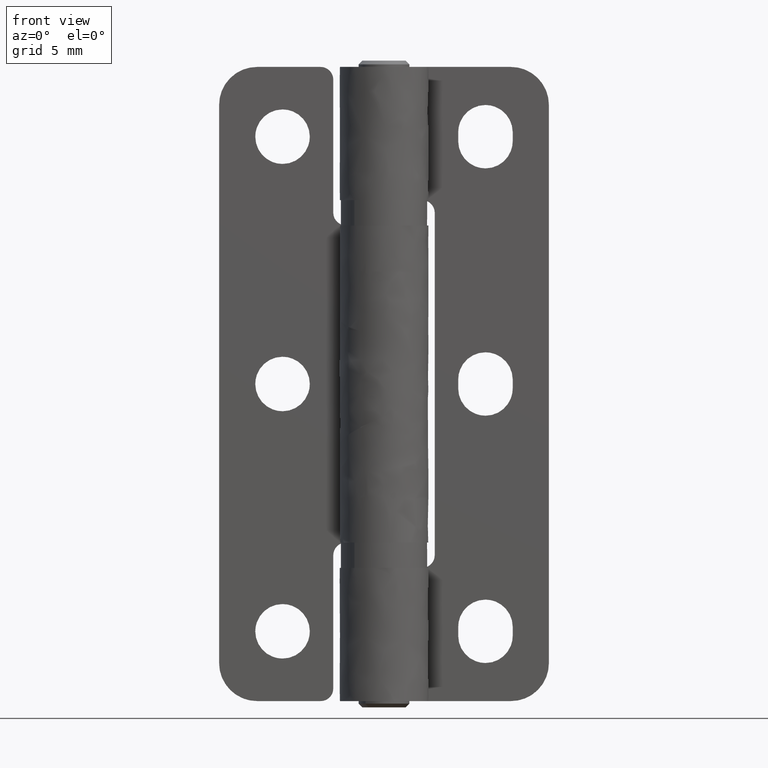
[diagram: clean part render]
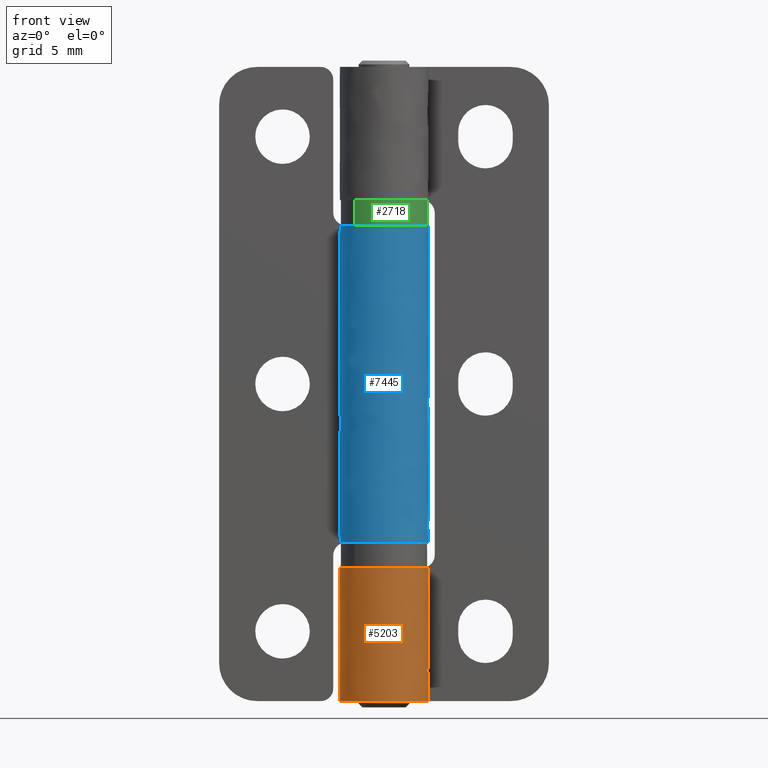
[diagram: same view with three faces highlighted in distinct colors, each labeled with its STEP entity id]
A machine part, front view with three faces highlighted in distinct colors.
Their STEP definitions:

[orange] entity #5203 — the highlighted face is a freeform B-spline surface patch.
#4252=CARTESIAN_POINT('',(3.162277660168295,1.500000000000200,1.0));
#4253=VERTEX_POINT('',#4252);
#4259=CARTESIAN_POINT('',(3.459029062228035,0.533964368344842,4.654752E-017));
#4260=VERTEX_POINT('',#4259);
#4261=CARTESIAN_POINT('',(3.459029062228035,0.533964368344842,4.654752E-017));
#4262=CARTESIAN_POINT('',(3.406150621910271,0.872546689781503,0.328573991909659));
#4263=CARTESIAN_POINT('',(3.306546732204679,1.196874368230893,0.664293993821992));
#4264=CARTESIAN_POINT('',(3.162277660168295,1.500000000000200,1.0));
#4265=B_SPLINE_CURVE_WITH_KNOTS('',3,(#4261,#4262,#4263,#4264),.UNSPECIFIED.,.F.,.U.,(4,4),(6.227636E-010,1.424268714151551),.UNSPECIFIED.);
#4266=EDGE_CURVE('',#4260,#4253,#4265,.T.);
#4281=CARTESIAN_POINT('',(3.162277660168295,1.500000000000200,9.499999999999840));
#4282=VERTEX_POINT('',#4281);
#4283=CARTESIAN_POINT('',(3.459029062228020,0.533964368344917,10.500000000000000));
#4284=VERTEX_POINT('',#4283);
#4285=CARTESIAN_POINT('',(3.162277660168295,1.500000000000200,9.499999999999840));
#4286=CARTESIAN_POINT('',(3.306532549001477,1.196868599638676,9.835705139630854));
#4287=CARTESIAN_POINT('',(3.406166115121144,0.872552832707083,10.171427097856030));
#4288=CARTESIAN_POINT('',(3.459029062228020,0.533964368344917,10.500000000000000));
#4289=B_SPLINE_CURVE_WITH_KNOTS('',3,(#4285,#4286,#4287,#4288),.UNSPECIFIED.,.F.,.U.,(4,4),(6.226037E-010,1.424268714803280),.UNSPECIFIED.);
#4290=EDGE_CURVE('',#4282,#4284,#4289,.T.);
#4800=CARTESIAN_POINT('',(0.0,3.499999999999950,10.500000000000000));
#4801=VERTEX_POINT('',#4800);
#4807=CARTESIAN_POINT('',(-2.278280203386017,-2.656960540704241,10.500000000000000));
#4808=VERTEX_POINT('',#4807);
#4809=CARTESIAN_POINT('',(0.0,3.499999999999950,10.500000000000000));
#4810=CARTESIAN_POINT('',(-0.299345154443780,3.500088146060874,10.500000000000011));
#4811=CARTESIAN_POINT('',(-0.886914798442221,3.424159702266513,10.499999999999989));
#4812=CARTESIAN_POINT('',(-1.633850180893883,3.125735594468447,10.499999999999980));
#4813=CARTESIAN_POINT('',(-2.288905693922168,2.683400025238806,10.500000000000050));
#4814=CARTESIAN_POINT('',(-2.806212528382872,2.142433490213812,10.500000000000000));
#4815=CARTESIAN_POINT('',(-3.175579810492009,1.519057789926920,10.500000000000140));
#4816=CARTESIAN_POINT('',(-3.373693284651230,0.975650058593988,10.500000000000080));
#4817=CARTESIAN_POINT('',(-3.485638403524773,0.442992713745497,10.499999999999600));
#4818=CARTESIAN_POINT('',(-3.513817287161872,-0.068313508428273,10.500000000000981));
#4819=CARTESIAN_POINT('',(-3.458507448096023,-0.609961204144397,10.499999999998931));
#4820=CARTESIAN_POINT('',(-3.310655964525744,-1.203373738854858,10.500000000000560));
#4821=CARTESIAN_POINT('',(-2.964176823069365,-1.941124039551355,10.500000000000110));
#4822=CARTESIAN_POINT('',(-2.547729229228002,-2.426143967352813,10.499999999999609));
#4823=CARTESIAN_POINT('',(-2.278280203386017,-2.656960540704241,10.500000000000000));
#4824=B_SPLINE_CURVE_WITH_KNOTS('',3,(#4809,#4810,#4811,#4812,#4813,#4814,#4815,#4816,#4817,#4818,#4819,#4820,#4821,#4822,#4823),.UNSPECIFIED.,.F.,.U.,(4,1,1,1,1,1,1,1,1,1,1,1,4),(0.000000120065598,0.898018097877403,1.762815426569206,2.394772713707343,3.259555512649342,3.991291833423255,4.556687977594449,4.989094020129333,5.621056613044971,6.086709011432992,6.618882834492977,7.450404483783613,8.514742086358192),.UNSPECIFIED.);
#4825=EDGE_CURVE('',#4801,#4808,#4824,.T.);
#4827=CARTESIAN_POINT('',(-2.278280203386017,-2.656960540704241,10.500000000000000));
#4828=CARTESIAN_POINT('',(-1.992259281969902,-2.902544036853793,10.499999999999989));
#4829=CARTESIAN_POINT('',(-1.483725085342581,-3.211923613716754,10.500000000000060));
#4830=CARTESIAN_POINT('',(-0.663667588284657,-3.461494586744595,10.499999999999940));
#4831=CARTESIAN_POINT('',(0.103122964996124,-3.531623303235545,10.500000000000041));
#4832=CARTESIAN_POINT('',(0.821511338695899,-3.425616488294670,10.499999999999980));
#4833=CARTESIAN_POINT('',(1.460415308926494,-3.198647578566403,10.500000000000020));
#4834=CARTESIAN_POINT('',(2.034678292520483,-2.879313701707082,10.500000000000000));
#4835=CARTESIAN_POINT('',(2.598437635041861,-2.388224062725472,10.500000000000000));
#4836=CARTESIAN_POINT('',(3.045763250209198,-1.775755968957842,10.500000000000000));
#4837=CARTESIAN_POINT('',(3.319413093982495,-1.165798765558455,10.500000000000000));
#4838=CARTESIAN_POINT('',(3.511674783666175,-0.400107080628885,10.499999999999989));
#4839=CARTESIAN_POINT('',(3.516789776670157,0.161424765880805,10.500000000000011));
#4840=CARTESIAN_POINT('',(3.459029062228020,0.533964368344917,10.500000000000000));
#4841=B_SPLINE_CURVE_WITH_KNOTS('',3,(#4827,#4828,#4829,#4830,#4831,#4832,#4833,#4834,#4835,#4836,#4837,#4838,#4839,#4840),.UNSPECIFIED.,.F.,.U.,(4,1,1,1,1,1,1,1,1,1,1,4),(0.000000120053611,1.130847539690037,1.762815226621776,2.561079774528611,3.425863752689512,3.924779309528037,4.589970088882667,5.388229118305028,6.153229648755618,6.851710092963957,7.383882614228989,8.514741120610587),.UNSPECIFIED.);
#4842=EDGE_CURVE('',#4808,#4284,#4841,.T.);
#5025=CARTESIAN_POINT('',(-2.278280936507244,-2.656959912070123,0.0));
#5026=VERTEX_POINT('',#5025);
#5027=CARTESIAN_POINT('',(3.459029062228035,0.533964368344842,4.654752E-017));
#5028=CARTESIAN_POINT('',(3.504785591466500,0.238136280448454,4.582178E-017));
#5029=CARTESIAN_POINT('',(3.519380176326453,-0.354135498689324,4.389022E-017));
#5030=CARTESIAN_POINT('',(3.338423182030863,-1.137867411088092,4.008976E-017));
#5031=CARTESIAN_POINT('',(3.024897600044205,-1.802363395539525,3.587262E-017));
#5032=CARTESIAN_POINT('',(2.676579596611909,-2.279232727796244,3.207990E-017));
#5033=CARTESIAN_POINT('',(2.241556763418758,-2.708209757820391,2.791191E-017));
#5034=CARTESIAN_POINT('',(1.687183804073086,-3.101441794103536,2.312431E-017));
#5035=CARTESIAN_POINT('',(1.066558981014232,-3.355667898929004,1.839964E-017));
#5036=CARTESIAN_POINT('',(0.468373215592855,-3.479016572693467,1.426127E-017));
#5037=CARTESIAN_POINT('',(0.013625004316746,-3.511101451262075,1.132585E-017));
#5038=CARTESIAN_POINT('',(-0.562703838151212,-3.472261169086349,7.877075E-018));
#5039=CARTESIAN_POINT('',(-1.126259657509820,-3.335282496761037,4.842760E-018));
#5040=CARTESIAN_POINT('',(-1.744525483703783,-3.056379520534112,1.953055E-018));
#5041=CARTESIAN_POINT('',(-2.093147609843768,-2.815760382279639,6.082368E-019));
#5042=CARTESIAN_POINT('',(-2.278280936507244,-2.656959912070123,0.0));
#5043=B_SPLINE_CURVE_WITH_KNOTS('',3,(#5027,#5028,#5029,#5030,#5031,#5032,#5033,#5034,#5035,#5036,#5037,#5038,#5039,#5040,#5041,#5042),.UNSPECIFIED.,.F.,.U.,(4,1,1,1,1,1,1,1,1,1,1,1,1,4),(0.000000120066019,0.898018097877957,1.762815426569886,2.394772713708085,3.093248404482217,3.525657268504424,4.224139939497325,5.122127540591375,5.521263709828993,6.053443633894815,6.485840241382524,7.250849471326044,7.783019161032411,8.514742086358195),.UNSPECIFIED.);
#5044=EDGE_CURVE('',#4260,#5026,#5043,.T.);
#5046=CARTESIAN_POINT('',(0.0,3.500000000000000,0.0));
#5047=VERTEX_POINT('',#5046);
#5048=CARTESIAN_POINT('',(-2.278280936507244,-2.656959912070123,0.0));
#5049=CARTESIAN_POINT('',(-2.471881010957542,-2.491002271644914,-4.573907E-018));
#5050=CARTESIAN_POINT('',(-2.784433338293754,-2.157219097886511,-1.239522E-017));
#5051=CARTESIAN_POINT('',(-3.149658441987181,-1.571916651896229,-2.283061E-017));
#5052=CARTESIAN_POINT('',(-3.417412331990100,-0.886992256803109,-3.217893E-017));
#5053=CARTESIAN_POINT('',(-3.536575312928797,-0.068415175838498,-3.974915E-017));
#5054=CARTESIAN_POINT('',(-3.451517559198719,0.720209749921024,-4.345763E-017));
#5055=CARTESIAN_POINT('',(-3.216090317477559,1.439318688624006,-4.400768E-017));
#5056=CARTESIAN_POINT('',(-2.869250520327674,2.050827064154000,-4.184527E-017));
#5057=CARTESIAN_POINT('',(-2.416080558320287,2.557382365753793,-3.707913E-017));
#5058=CARTESIAN_POINT('',(-1.987398160463936,2.893651867170129,-3.162202E-017));
#5059=CARTESIAN_POINT('',(-1.566347860019245,3.141562787667210,-2.571537E-017));
#5060=CARTESIAN_POINT('',(-0.931180753148627,3.409573773429759,-1.610168E-017));
#5061=CARTESIAN_POINT('',(-0.376984014041863,3.500211716545365,-6.763062E-018));
#5062=CARTESIAN_POINT('',(0.0,3.500000000000000,0.0));
#5063=B_SPLINE_CURVE_WITH_KNOTS('',3,(#5048,#5049,#5050,#5051,#5052,#5053,#5054,#5055,#5056,#5057,#5058,#5059,#5060,#5061,#5062),.UNSPECIFIED.,.F.,.U.,(4,1,1,1,1,1,1,1,1,1,1,1,4),(0.000000120054153,0.764983945408528,1.363676884069096,2.062163878442490,2.960215634675609,3.824983797169972,4.423667613499070,5.221917390130221,5.920401639564883,6.452577948639424,6.851710092963841,7.383882614228895,8.514741120610545),.UNSPECIFIED.);
#5064=EDGE_CURVE('',#5026,#5047,#5063,.T.);
#5142=CARTESIAN_POINT('',(3.162277660168295,1.500000000000200,9.499999999999840));
#5143=CARTESIAN_POINT('',(3.162277660168295,1.500000000000200,1.0));
#5144=QUASI_UNIFORM_CURVE('',1,(#5142,#5143),.UNSPECIFIED.,.F.,.U.);
#5145=EDGE_CURVE('',#4282,#4253,#5144,.T.);
#5167=CARTESIAN_POINT('',(0.030542874244306,3.499866730724598,10.762499999999999));
#5168=CARTESIAN_POINT('',(0.030542874244306,3.499866730724598,-0.269062500000000));
#5169=CARTESIAN_POINT('',(-4.115880821359820,3.536052022120600,10.762500000000001));
#5170=CARTESIAN_POINT('',(-4.115880821359820,3.536052022120600,-0.269062500000000));
#5171=CARTESIAN_POINT('',(-3.455301895910807,-0.557574038236331,10.762499999999999));
#5172=CARTESIAN_POINT('',(-3.455301895910807,-0.557574038236331,-0.269062500000000));
#5173=CARTESIAN_POINT('',(-2.794722970461796,-4.651200098593262,10.762500000000001));
#5174=CARTESIAN_POINT('',(-2.794722970461796,-4.651200098593262,-0.269062500000000));
#5175=CARTESIAN_POINT('',(1.129857326068901,-3.312615646694983,10.762499999999999));
#5176=CARTESIAN_POINT('',(1.129857326068901,-3.312615646694983,-0.269062500000000));
#5177=CARTESIAN_POINT('',(5.054437622599598,-1.974031194796705,10.762500000000001));
#5178=CARTESIAN_POINT('',(5.054437622599598,-1.974031194796705,-0.269062500000000));
#5179=CARTESIAN_POINT('',(3.075859894316878,1.670055660908628,10.762499999999999));
#5180=CARTESIAN_POINT('',(3.075859894316878,1.670055660908628,-0.269062500000000));
#5188=(BOUNDED_SURFACE()B_SPLINE_SURFACE(1,2,((#5167,#5169,#5171,#5173,#5175,#5177,#5179),(#5168,#5170,#5172,#5174,#5176,#5178,#5180)),.UNSPECIFIED.,.F.,.F.,.U.)B_SPLINE_SURFACE_WITH_KNOTS((2,2),(3,2,2,3),(0.0,11.031562500000000),(0.0,6.503534214651215,13.007068429302430,19.510602643953650),.UNSPECIFIED.)GEOMETRIC_REPRESENTATION_ITEM()RATIONAL_B_SPLINE_SURFACE(((1.0,0.645013219999878,1.0,0.645013219999878,1.0,0.645013219999878,1.0),(1.0,0.645013219999878,1.0,0.645013219999878,1.0,0.645013219999878,1.0)))REPRESENTATION_ITEM('')SURFACE());
#5189=ORIENTED_EDGE('',*,*,#5145,.F.);
#5190=ORIENTED_EDGE('',*,*,#4290,.T.);
#5191=ORIENTED_EDGE('',*,*,#4842,.F.);
#5192=ORIENTED_EDGE('',*,*,#4825,.F.);
#5193=CARTESIAN_POINT('',(0.0,3.499999999999950,10.500000000000000));
#5194=CARTESIAN_POINT('',(0.0,3.500000000000000,0.0));
#5195=QUASI_UNIFORM_CURVE('',1,(#5193,#5194),.UNSPECIFIED.,.F.,.U.);
#5196=EDGE_CURVE('',#4801,#5047,#5195,.T.);
#5197=ORIENTED_EDGE('',*,*,#5196,.T.);
#5198=ORIENTED_EDGE('',*,*,#5064,.F.);
#5199=ORIENTED_EDGE('',*,*,#5044,.F.);
#5200=ORIENTED_EDGE('',*,*,#4266,.T.);
#5201=EDGE_LOOP('',(#5189,#5190,#5191,#5192,#5197,#5198,#5199,#5200));
#5202=FACE_OUTER_BOUND('',#5201,.T.);
#5203=ADVANCED_FACE('',(#5202),#5188,.T.);

[blue] entity #7445 — the highlighted face is a freeform B-spline surface patch.
#6231=CARTESIAN_POINT('',(0.0,3.500000000000000,37.500000000000000));
#6232=VERTEX_POINT('',#6231);
#6238=CARTESIAN_POINT('',(0.0,3.500000000000000,12.500000000000000));
#6239=VERTEX_POINT('',#6238);
#6240=CARTESIAN_POINT('',(0.0,3.500000000000000,37.500000000000000));
#6241=CARTESIAN_POINT('',(0.0,3.500000000000000,12.500000000000000));
#6242=QUASI_UNIFORM_CURVE('',1,(#6240,#6241),.UNSPECIFIED.,.F.,.U.);
#6243=EDGE_CURVE('',#6232,#6239,#6242,.T.);
#6334=CARTESIAN_POINT('',(-3.477067730142785,0.399999999999680,36.500000000000000));
#6335=VERTEX_POINT('',#6334);
#6341=CARTESIAN_POINT('',(-3.446411345844260,-0.610121983898293,37.500000000000000));
#6342=VERTEX_POINT('',#6341);
#6343=CARTESIAN_POINT('',(-3.446411345844260,-0.610121983898293,37.500000000000000));
#6344=CARTESIAN_POINT('',(-3.505575107132328,-0.272576449624877,37.171427662811404));
#6345=CARTESIAN_POINT('',(-3.515844997381493,0.066542484710620,36.835704363623123));
#6346=CARTESIAN_POINT('',(-3.477067730142785,0.399999999999680,36.500000000000000));
#6347=B_SPLINE_CURVE_WITH_KNOTS('',3,(#6343,#6344,#6345,#6346),.UNSPECIFIED.,.F.,.U.,(4,4),(6.221796E-010,1.424268714151569),.UNSPECIFIED.);
#6348=EDGE_CURVE('',#6342,#6335,#6347,.T.);
#6363=CARTESIAN_POINT('',(-3.477067730142785,0.399999999999680,13.500000000000000));
#6364=VERTEX_POINT('',#6363);
#6365=CARTESIAN_POINT('',(-3.446411345844260,-0.610121983898311,12.500000000000000));
#6366=VERTEX_POINT('',#6365);
#6367=CARTESIAN_POINT('',(-3.477067730142785,0.399999999999680,13.500000000000000));
#6368=CARTESIAN_POINT('',(-3.515845054268378,0.066542499486375,13.164295644554439));
#6369=CARTESIAN_POINT('',(-3.505575041271189,-0.272576491522652,12.828572303092439));
#6370=CARTESIAN_POINT('',(-3.446411345844260,-0.610121983898311,12.500000000000000));
#6371=B_SPLINE_CURVE_WITH_KNOTS('',3,(#6367,#6368,#6369,#6370),.UNSPECIFIED.,.F.,.U.,(4,4),(6.228391E-010,1.424268714803255),.UNSPECIFIED.);
#6372=EDGE_CURVE('',#6364,#6366,#6371,.T.);
#6551=CARTESIAN_POINT('',(-3.477067730142785,0.399999999999680,30.400000000026651));
#6552=VERTEX_POINT('',#6551);
#6553=CARTESIAN_POINT('',(-3.384261697123185,0.892621288892966,29.900000000026552));
#6554=VERTEX_POINT('',#6553);
#6555=CARTESIAN_POINT('',(-3.477067730142785,0.399999999999681,30.400000000026651));
#6556=CARTESIAN_POINT('',(-3.477067730142785,0.399999999999681,30.366917996199462));
#6557=CARTESIAN_POINT('',(-3.476700456128358,0.403230086239327,30.334389522657009));
#6558=CARTESIAN_POINT('',(-3.475582546566523,0.412717946090414,30.286393210789541));
#6559=CARTESIAN_POINT('',(-3.475113982979110,0.416660040629999,30.270528163389169));
#6560=CARTESIAN_POINT('',(-3.473964582185958,0.426137144440934,30.239071669082630));
#6561=CARTESIAN_POINT('',(-3.473280325843009,0.431698241919949,30.223439603833441));
#6562=CARTESIAN_POINT('',(-3.470918306367614,0.450427004498665,30.177973136574369));
#6563=CARTESIAN_POINT('',(-3.468926967902294,0.465700393481775,30.149223935997469));
#6564=CARTESIAN_POINT('',(-3.463896810030025,0.501747002574711,30.094823637053938));
#6565=CARTESIAN_POINT('',(-3.460825327421759,0.522707615820244,30.069078068149359));
#6566=CARTESIAN_POINT('',(-3.453613234642331,0.568410788131029,30.022961638914751));
#6567=CARTESIAN_POINT('',(-3.449453489417867,0.593314663150610,30.002280225678060));
#6568=CARTESIAN_POINT('',(-3.439735555029285,0.647279674201189,29.965782723053060));
#6569=CARTESIAN_POINT('',(-3.434243367067897,0.675930510144045,29.950307909031810));
#6570=CARTESIAN_POINT('',(-3.422085534975843,0.735010306119943,29.925481919872912));
#6571=CARTESIAN_POINT('',(-3.415335537789229,0.765852879097707,29.915947429131968));
#6572=CARTESIAN_POINT('',(-3.400588992286666,0.828879951287906,29.903185520566790));
#6573=CARTESIAN_POINT('',(-3.392698465302884,0.860634340168649,29.900000000026640));
#6574=CARTESIAN_POINT('',(-3.384261697123185,0.892621288892977,29.900000000026651));
#6575=B_SPLINE_CURVE_WITH_KNOTS('',3,(#6555,#6556,#6557,#6558,#6559,#6560,#6561,#6562,#6563,#6564,#6565,#6566,#6567,#6568,#6569,#6570,#6571,#6572,#6573,#6574),.UNSPECIFIED.,.F.,.U.,(4,2,2,2,2,2,2,2,2,4),(0.0,0.125000000000000,0.187500000000000,0.250000000000000,0.375000000000000,0.500000000000000,0.625000000000000,0.750000000000000,0.875000000000000,1.0),.UNSPECIFIED.);
#6576=EDGE_CURVE('',#6552,#6554,#6575,.T.);
#6739=CARTESIAN_POINT('',(-3.384261697123185,0.892621288892966,20.100000000026650));
#6740=VERTEX_POINT('',#6739);
#6741=CARTESIAN_POINT('',(-3.477067730142785,0.399999999999680,19.600000000026601));
#6742=VERTEX_POINT('',#6741);
#6743=CARTESIAN_POINT('',(-3.384261697123185,0.892621288892966,20.100000000026650));
#6744=CARTESIAN_POINT('',(-3.392697811017697,0.860636820808886,20.100000000026650));
#6745=CARTESIAN_POINT('',(-3.400541742687787,0.829060262108723,20.096815039836400));
#6746=CARTESIAN_POINT('',(-3.411489861638080,0.782299935723545,20.087400348176381));
#6747=CARTESIAN_POINT('',(-3.415002637618249,0.766814787860625,20.083483748481800));
#6748=CARTESIAN_POINT('',(-3.421763807791203,0.736057319447051,20.074050496106899));
#6749=CARTESIAN_POINT('',(-3.425019194056360,0.720745399116776,20.068507806638991));
#6750=CARTESIAN_POINT('',(-3.434203229474093,0.676143341814127,20.049812877042449));
#6751=CARTESIAN_POINT('',(-3.439627447163876,0.647847867451299,20.034533140437478));
#6752=CARTESIAN_POINT('',(-3.449305697218984,0.594166678447165,19.998362635988169));
#6753=CARTESIAN_POINT('',(-3.453567761962298,0.568687772884407,19.977283782261772));
#6754=CARTESIAN_POINT('',(-3.460789142797932,0.522947969290890,19.931198143577589));
#6755=CARTESIAN_POINT('',(-3.463806063596744,0.502379167793210,19.906029193247392));
#6756=CARTESIAN_POINT('',(-3.468887308507877,0.466002269645929,19.851330287796880));
#6757=CARTESIAN_POINT('',(-3.470902576643892,0.450546764739543,19.822240917449211));
#6758=CARTESIAN_POINT('',(-3.474040286593670,0.425677308409377,19.762019441527482));
#6759=CARTESIAN_POINT('',(-3.475185360738800,0.416087259171049,19.730469915806989));
#6760=CARTESIAN_POINT('',(-3.476700612292774,0.403230394713489,19.665790379659182));
#6761=CARTESIAN_POINT('',(-3.477067730142786,0.399999999999678,19.633081454181259));
#6762=CARTESIAN_POINT('',(-3.477067730142785,0.399999999999681,19.600000000026601));
#6763=B_SPLINE_CURVE_WITH_KNOTS('',3,(#6743,#6744,#6745,#6746,#6747,#6748,#6749,#6750,#6751,#6752,#6753,#6754,#6755,#6756,#6757,#6758,#6759,#6760,#6761,#6762),.UNSPECIFIED.,.F.,.U.,(4,2,2,2,2,2,2,2,2,4),(0.0,0.125000000000004,0.187500000000006,0.250000000000008,0.375000000000007,0.500000000000006,0.625000000000004,0.750000000000003,0.875000000000001,1.0),.UNSPECIFIED.);
#6764=EDGE_CURVE('',#6740,#6742,#6763,.T.);
#6816=CARTESIAN_POINT('',(-3.344128900029545,1.032861026463500,20.100000000026650));
#6817=VERTEX_POINT('',#6816);
#6823=CARTESIAN_POINT('',(-3.162277660168410,1.499999999999950,20.600000000026601));
#6824=VERTEX_POINT('',#6823);
#6825=CARTESIAN_POINT('',(-3.162277660168410,1.499999999999950,20.600000000026601));
#6826=CARTESIAN_POINT('',(-3.162277660168410,1.499999999999950,20.566917996199411));
#6827=CARTESIAN_POINT('',(-3.163674773212406,1.497064625669559,20.534389522656959));
#6828=CARTESIAN_POINT('',(-3.167745386999245,1.488421749427203,20.486393210789512));
#6829=CARTESIAN_POINT('',(-3.169433212512183,1.484828574475666,20.470528163389119));
#6830=CARTESIAN_POINT('',(-3.173471412397918,1.476178166363364,20.439071669082590));
#6831=CARTESIAN_POINT('',(-3.175832686483188,1.471096985732033,20.423439603833391));
#6832=CARTESIAN_POINT('',(-3.183736173757579,1.453954040458960,20.377973136574340));
#6833=CARTESIAN_POINT('',(-3.190126257351473,1.439939452645691,20.349223935997440));
#6834=CARTESIAN_POINT('',(-3.204927051944065,1.406688933931742,20.294823637053881));
#6835=CARTESIAN_POINT('',(-3.213409179660663,1.387276700097348,20.269078068149309));
#6836=CARTESIAN_POINT('',(-3.231466894831206,1.344677249815125,20.222961638914700));
#6837=CARTESIAN_POINT('',(-3.241111583715790,1.321343016430614,20.202280225678020));
#6838=CARTESIAN_POINT('',(-3.261413510343508,1.270406855977824,20.165782723053020));
#6839=CARTESIAN_POINT('',(-3.271909699721388,1.243188029085919,20.150307909031788));
#6840=CARTESIAN_POINT('',(-3.292846939416730,1.186620660686178,20.125481919872851));
#6841=CARTESIAN_POINT('',(-3.303435217133759,1.156876499160009,20.115947429131911));
#6842=CARTESIAN_POINT('',(-3.324263846487753,1.095589953879975,20.103185520566740));
#6843=CARTESIAN_POINT('',(-3.334366631136176,1.064468652949282,20.100000000026601));
#6844=CARTESIAN_POINT('',(-3.344128900029545,1.032861026463506,20.100000000026601));
#6845=B_SPLINE_CURVE_WITH_KNOTS('',3,(#6825,#6826,#6827,#6828,#6829,#6830,#6831,#6832,#6833,#6834,#6835,#6836,#6837,#6838,#6839,#6840,#6841,#6842,#6843,#6844),.UNSPECIFIED.,.F.,.U.,(4,2,2,2,2,2,2,2,2,4),(0.0,0.125000000000000,0.187500000000000,0.250000000000000,0.375000000000000,0.500000000000000,0.625000000000000,0.750000000000000,0.875000000000000,1.0),.UNSPECIFIED.);
#6846=EDGE_CURVE('',#6824,#6817,#6845,.T.);
#6870=CARTESIAN_POINT('',(-3.344128900029545,1.032861026463500,29.900000000026552));
#6871=VERTEX_POINT('',#6870);
#6899=CARTESIAN_POINT('',(-3.162277660168410,1.499999999999950,29.400000000026651));
#6900=VERTEX_POINT('',#6899);
#6906=CARTESIAN_POINT('',(-3.344128900029545,1.032861026463500,29.900000000026601));
#6907=CARTESIAN_POINT('',(-3.334367388216116,1.064466201726085,29.900000000026601));
#6908=CARTESIAN_POINT('',(-3.324319138368889,1.095411944541500,29.896815039836358));
#6909=CARTESIAN_POINT('',(-3.308872589432457,1.140884942662935,29.887400348176332));
#6910=CARTESIAN_POINT('',(-3.303661585593550,1.155884103919958,29.883483748481758));
#6911=CARTESIAN_POINT('',(-3.293127811506460,1.185561955742513,29.874050496106861));
#6912=CARTESIAN_POINT('',(-3.287790025657527,1.200277949972154,29.868507806638949));
#6913=CARTESIAN_POINT('',(-3.271988231136747,1.242986184682871,29.849812877042410));
#6914=CARTESIAN_POINT('',(-3.261622355506865,1.269867491001376,29.834533140437451));
#6915=CARTESIAN_POINT('',(-3.241436900366287,1.320541803801788,29.798362635988148));
#6916=CARTESIAN_POINT('',(-3.231574837203881,1.344418142187999,29.777283782261762));
#6917=CARTESIAN_POINT('',(-3.213505625222390,1.387053591667448,29.731198143577569));
#6918=CARTESIAN_POINT('',(-3.205184472708502,1.406104466371719,29.706029193247389));
#6919=CARTESIAN_POINT('',(-3.190252301017497,1.439662297309593,29.651330287796881));
#6920=CARTESIAN_POINT('',(-3.183786181116274,1.453844089544516,29.622240917449211));
#6921=CARTESIAN_POINT('',(-3.173292392678289,1.476608436363743,29.562019441527500));
#6922=CARTESIAN_POINT('',(-3.169190770609632,1.485352402031409,29.530469915807011));
#6923=CARTESIAN_POINT('',(-3.163675068924302,1.497064446510090,29.465790379659222));
#6924=CARTESIAN_POINT('',(-3.162277660168410,1.499999999999950,29.433081454181259));
#6925=CARTESIAN_POINT('',(-3.162277660168410,1.499999999999950,29.400000000026601));
#6926=B_SPLINE_CURVE_WITH_KNOTS('',3,(#6906,#6907,#6908,#6909,#6910,#6911,#6912,#6913,#6914,#6915,#6916,#6917,#6918,#6919,#6920,#6921,#6922,#6923,#6924,#6925),.UNSPECIFIED.,.F.,.U.,(4,2,2,2,2,2,2,2,2,4),(0.0,0.125000000000001,0.187500000000001,0.250000000000001,0.375000000000001,0.500000000000001,0.625000000000000,0.750000000000000,0.875000000000000,1.0),.UNSPECIFIED.);
#6927=EDGE_CURVE('',#6871,#6900,#6926,.T.);
#6937=CARTESIAN_POINT('',(-3.384261697123185,0.892621288892966,29.900000000026552));
#6938=CARTESIAN_POINT('',(-3.371860483014523,0.939639122450413,29.900000000026541));
#6939=CARTESIAN_POINT('',(-3.358478497155688,0.986401045966525,29.900000000026569));
#6940=CARTESIAN_POINT('',(-3.344128900029545,1.032861026463500,29.900000000026552));
#6941=B_SPLINE_CURVE_WITH_KNOTS('',3,(#6937,#6938,#6939,#6940),.UNSPECIFIED.,.F.,.U.,(4,4),(1.791250E-011,0.145880425523876),.UNSPECIFIED.);
#6942=EDGE_CURVE('',#6554,#6871,#6941,.T.);
#6956=CARTESIAN_POINT('',(-3.384261697123185,0.892621288892966,20.100000000026650));
#6957=CARTESIAN_POINT('',(-3.371860483014523,0.939639122450413,20.100000000026629));
#6958=CARTESIAN_POINT('',(-3.358478497155688,0.986401045966524,20.100000000026689));
#6959=CARTESIAN_POINT('',(-3.344128900029545,1.032861026463500,20.100000000026650));
#6960=B_SPLINE_CURVE_WITH_KNOTS('',3,(#6956,#6957,#6958,#6959),.UNSPECIFIED.,.F.,.U.,(4,4),(1.791250E-011,0.145880425523876),.UNSPECIFIED.);
#6961=EDGE_CURVE('',#6740,#6817,#6960,.T.);
#6971=CARTESIAN_POINT('',(-3.162277660168410,1.499999999999950,20.600000000026601));
#6972=CARTESIAN_POINT('',(-3.162277660168410,1.499999999999950,29.400000000026651));
#6973=QUASI_UNIFORM_CURVE('',1,(#6971,#6972),.UNSPECIFIED.,.F.,.U.);
#6974=EDGE_CURVE('',#6824,#6900,#6973,.T.);
#7163=CARTESIAN_POINT('',(2.681923863080510,-2.248840677469019,37.500000000000000));
#7164=VERTEX_POINT('',#7163);
#7165=CARTESIAN_POINT('',(-3.446411345844260,-0.610121983898293,37.500000000000000));
#7166=CARTESIAN_POINT('',(-3.415779728547288,-0.783185713847696,37.499999999999993));
#7167=CARTESIAN_POINT('',(-3.318107131982115,-1.164869181584181,37.500000000000050));
#7168=CARTESIAN_POINT('',(-3.077363966732339,-1.705547611372312,37.499999999999908));
#7169=CARTESIAN_POINT('',(-2.698729032063657,-2.263632353227738,37.500000000000000));
#7170=CARTESIAN_POINT('',(-2.203126510105410,-2.753653837073267,37.500000000000007));
#7171=CARTESIAN_POINT('',(-1.642070339800915,-3.110861448062323,37.499999999999829));
#7172=CARTESIAN_POINT('',(-1.096598853240221,-3.337751270416489,37.500000000000512));
#7173=CARTESIAN_POINT('',(-0.583273298195260,-3.465314870504129,37.499999999999879));
#7174=CARTESIAN_POINT('',(0.046703025843772,-3.521243482513382,37.500000000000171));
#7175=CARTESIAN_POINT('',(0.657540157724169,-3.458710874932347,37.499999999999922));
#7176=CARTESIAN_POINT('',(1.243849565477590,-3.284881555746136,37.500000000000007));
#7177=CARTESIAN_POINT('',(1.676492963010365,-3.084175712186621,37.499999999999972));
#7178=CARTESIAN_POINT('',(2.183060659207448,-2.761443381486636,37.500000000000327));
#7179=CARTESIAN_POINT('',(2.495984467669705,-2.470713991526294,37.499999999999488));
#7180=CARTESIAN_POINT('',(2.681923863080510,-2.248840677469019,37.500000000000000));
#7181=B_SPLINE_CURVE_WITH_KNOTS('',3,(#7165,#7166,#7167,#7168,#7169,#7170,#7171,#7172,#7173,#7174,#7175,#7176,#7177,#7178,#7179,#7180),.UNSPECIFIED.,.F.,.U.,(4,1,1,1,1,1,1,1,1,1,1,1,1,4),(0.000000101714612,0.527263765124492,1.178596727410290,1.767906611445559,2.543317007825671,3.256677705860938,3.752929895751510,4.311199470252009,4.838466796314609,5.644896301090251,6.141158528881205,6.668438653259621,7.071652938801973,7.940079790455040),.UNSPECIFIED.);
#7182=EDGE_CURVE('',#6342,#7164,#7181,.T.);
#7184=CARTESIAN_POINT('',(2.681923863080510,-2.248840677469019,37.500000000000000));
#7185=CARTESIAN_POINT('',(2.861336170030822,-2.034988139505543,37.500000000000107));
#7186=CARTESIAN_POINT('',(3.100224551389717,-1.668679179974526,37.499999999999787));
#7187=CARTESIAN_POINT('',(3.333798510316240,-1.103731807487016,37.500000000000227));
#7188=CARTESIAN_POINT('',(3.480204707063945,-0.531166743116435,37.499999999999758));
#7189=CARTESIAN_POINT('',(3.526974220383575,0.195497276501392,37.500000000000377));
#7190=CARTESIAN_POINT('',(3.392456070140002,0.975779146170575,37.499999999999659));
#7191=CARTESIAN_POINT('',(3.075321292836544,1.733068976759686,37.500000000001180));
#7192=CARTESIAN_POINT('',(2.650030114919721,2.325493907941566,37.499999999997307));
#7193=CARTESIAN_POINT('',(2.121304150060971,2.808173550923717,37.500000000003837));
#7194=CARTESIAN_POINT('',(1.627905397362342,3.116319279971010,37.499999999999218));
#7195=CARTESIAN_POINT('',(0.920002005880420,3.410946021034838,37.500000000000142));
#7196=CARTESIAN_POINT('',(0.382568426522846,3.500262279035562,37.500000000000071));
#7197=CARTESIAN_POINT('',(0.0,3.500000000000000,37.500000000000000));
#7198=B_SPLINE_CURVE_WITH_KNOTS('',3,(#7184,#7185,#7186,#7187,#7188,#7189,#7190,#7191,#7192,#7193,#7194,#7195,#7196,#7197),.UNSPECIFIED.,.F.,.U.,(4,1,1,1,1,1,1,1,1,1,1,4),(0.000000101709025,0.837411941113641,1.302659280425240,1.829938604523701,2.605348809150654,3.473791637100268,4.187145109982623,5.055586475051038,5.644895420030291,6.327254424627947,6.792500871710169,7.940078551160307),.UNSPECIFIED.);
#7199=EDGE_CURVE('',#7164,#6232,#7198,.T.);
#7216=CARTESIAN_POINT('',(2.681923066809199,-2.248841627086430,12.500000000000000));
#7217=VERTEX_POINT('',#7216);
#7218=CARTESIAN_POINT('',(0.0,3.500000000000000,12.500000000000000));
#7219=CARTESIAN_POINT('',(0.217105875343622,3.500018446798100,12.500000000000030));
#7220=CARTESIAN_POINT('',(0.692676929651147,3.455625402906781,12.499999999999931));
#7221=CARTESIAN_POINT('',(1.418842101502901,3.233560608070000,12.500000000000069));
#7222=CARTESIAN_POINT('',(2.057738494630400,2.861526092258497,12.499999999999970));
#7223=CARTESIAN_POINT('',(2.521140966285902,2.445831138758624,12.499999999999950));
#7224=CARTESIAN_POINT('',(2.872083335833175,2.023636459971628,12.500000000000011));
#7225=CARTESIAN_POINT('',(3.172346389108199,1.525970436424784,12.500000000000140));
#7226=CARTESIAN_POINT('',(3.419063178053164,0.864082156485704,12.500000000000030));
#7227=CARTESIAN_POINT('',(3.522157538163584,0.153419516787255,12.499999999999760));
#7228=CARTESIAN_POINT('',(3.480825370641722,-0.489034133664297,12.499999999999860));
#7229=CARTESIAN_POINT('',(3.347514097996165,-1.075038897677869,12.499999999999909));
#7230=CARTESIAN_POINT('',(3.107997974983094,-1.661679376784726,12.500000000000650));
#7231=CARTESIAN_POINT('',(2.841380467905225,-2.058739732790193,12.499999999998780));
#7232=CARTESIAN_POINT('',(2.681923066809199,-2.248841627086430,12.500000000000000));
#7233=B_SPLINE_CURVE_WITH_KNOTS('',3,(#7218,#7219,#7220,#7221,#7222,#7223,#7224,#7225,#7226,#7227,#7228,#7229,#7230,#7231,#7232),.UNSPECIFIED.,.F.,.U.,(4,1,1,1,1,1,1,1,1,1,1,1,4),(0.000000101712685,0.651319658401501,1.426724031238471,2.264167644274612,2.853469662035236,3.287710427667606,3.908023251274189,4.590348448453041,5.396771295744561,6.048108268222723,6.513348439372237,7.195715171222737,7.940079790455013),.UNSPECIFIED.);
#7234=EDGE_CURVE('',#6239,#7217,#7233,.T.);
#7236=CARTESIAN_POINT('',(2.681923066809199,-2.248841627086430,12.500000000000000));
#7237=CARTESIAN_POINT('',(2.502620676257553,-2.462786532364102,12.500000000000000));
#7238=CARTESIAN_POINT('',(2.183562345625618,-2.761871090950267,12.500000000000030));
#7239=CARTESIAN_POINT('',(1.667982157341205,-3.090351105219821,12.499999999999950));
#7240=CARTESIAN_POINT('',(1.129706136180067,-3.334338268489230,12.500000000000130));
#7241=CARTESIAN_POINT('',(0.513269648477954,-3.484789729467098,12.499999999999959));
#7242=CARTESIAN_POINT('',(-0.160476762718582,-3.514726474490832,12.499999999999940));
#7243=CARTESIAN_POINT('',(-0.767694140421056,-3.433614899575876,12.500000000000171));
#7244=CARTESIAN_POINT('',(-1.360528428683942,-3.243693342192628,12.499999999999940));
#7245=CARTESIAN_POINT('',(-1.939679458116921,-2.940116398959073,12.499999999999909));
#7246=CARTESIAN_POINT('',(-2.417526264474449,-2.555453652159027,12.500000000000179));
#7247=CARTESIAN_POINT('',(-2.861741622528773,-2.049190887159551,12.500000000000121));
#7248=CARTESIAN_POINT('',(-3.230054012622833,-1.432737159171716,12.499999999999940));
#7249=CARTESIAN_POINT('',(-3.396018027161968,-0.895182143616769,12.500000000000011));
#7250=CARTESIAN_POINT('',(-3.446411345844260,-0.610121983898311,12.500000000000000));
#7251=B_SPLINE_CURVE_WITH_KNOTS('',3,(#7236,#7237,#7238,#7239,#7240,#7241,#7242,#7243,#7244,#7245,#7246,#7247,#7248,#7249,#7250),.UNSPECIFIED.,.F.,.U.,(4,1,1,1,1,1,1,1,1,1,1,1,4),(0.000000101708394,0.837411941113203,1.302659280424858,1.829938604523363,2.605348809150380,3.194645828302835,3.845999697127306,4.435254237585353,5.055586475050993,5.799977878636932,6.265222456141746,7.071651835044452,7.940078551160312),.UNSPECIFIED.);
#7252=EDGE_CURVE('',#7217,#6366,#7251,.T.);
#7391=CARTESIAN_POINT('',(-3.477067730142785,0.399999999999680,19.600000000026601));
#7392=CARTESIAN_POINT('',(-3.477067730142785,0.399999999999680,13.500000000000000));
#7393=QUASI_UNIFORM_CURVE('',1,(#7391,#7392),.UNSPECIFIED.,.F.,.U.);
#7394=EDGE_CURVE('',#6742,#6364,#7393,.T.);
#7401=CARTESIAN_POINT('',(-3.116789690454118,1.592363659934162,38.125000000000000));
#7402=CARTESIAN_POINT('',(-3.116789690454118,1.592363659934162,11.859375000000000));
#7403=CARTESIAN_POINT('',(-5.014494802897119,-2.122081651025128,38.125000000000000));
#7404=CARTESIAN_POINT('',(-5.014494802897119,-2.122081651025128,11.859375000000000));
#7405=CARTESIAN_POINT('',(-1.026947227999625,-3.345949699398346,38.125000000000000));
#7406=CARTESIAN_POINT('',(-1.026947227999625,-3.345949699398346,11.859375000000000));
#7407=CARTESIAN_POINT('',(2.960600346897868,-4.569817747771563,38.125000000000000));
#7408=CARTESIAN_POINT('',(2.960600346897868,-4.569817747771563,11.859375000000000));
#7409=CARTESIAN_POINT('',(3.473444719858598,-0.430327524202692,38.125000000000000));
#7410=CARTESIAN_POINT('',(3.473444719858598,-0.430327524202692,11.859375000000000));
#7411=CARTESIAN_POINT('',(3.986289092819328,3.709162699366180,38.125000000000000));
#7412=CARTESIAN_POINT('',(3.986289092819328,3.709162699366180,11.859375000000000));
#7413=CARTESIAN_POINT('',(-0.179367463660906,3.495400880153784,38.125000000000000));
#7414=CARTESIAN_POINT('',(-0.179367463660906,3.495400880153784,11.859375000000000));
#7422=(BOUNDED_SURFACE()B_SPLINE_SURFACE(1,2,((#7401,#7403,#7405,#7407,#7409,#7411,#7413),(#7402,#7404,#7406,#7408,#7410,#7412,#7414)),.UNSPECIFIED.,.F.,.F.,.U.)B_SPLINE_SURFACE_WITH_KNOTS((2,2),(3,2,2,3),(0.0,26.265625000000000),(0.0,6.528307214169979,13.056614428339961,19.584921642509940),.UNSPECIFIED.)GEOMETRIC_REPRESENTATION_ITEM()RATIONAL_B_SPLINE_SURFACE(((1.0,0.642787609686539,1.0,0.642787609686539,1.0,0.642787609686539,1.0),(1.0,0.642787609686539,1.0,0.642787609686539,1.0,0.642787609686539,1.0)))REPRESENTATION_ITEM('')SURFACE());
#7423=ORIENTED_EDGE('',*,*,#7394,.T.);
#7424=ORIENTED_EDGE('',*,*,#6372,.T.);
#7425=ORIENTED_EDGE('',*,*,#7252,.F.);
#7426=ORIENTED_EDGE('',*,*,#7234,.F.);
#7427=ORIENTED_EDGE('',*,*,#6243,.F.);
#7428=ORIENTED_EDGE('',*,*,#7199,.F.);
#7429=ORIENTED_EDGE('',*,*,#7182,.F.);
#7430=ORIENTED_EDGE('',*,*,#6348,.T.);
#7431=CARTESIAN_POINT('',(-3.477067730142785,0.399999999999680,36.500000000000000));
#7432=CARTESIAN_POINT('',(-3.477067730142785,0.399999999999680,30.400000000026651));
#7433=QUASI_UNIFORM_CURVE('',1,(#7431,#7432),.UNSPECIFIED.,.F.,.U.);
#7434=EDGE_CURVE('',#6335,#6552,#7433,.T.);
#7435=ORIENTED_EDGE('',*,*,#7434,.T.);
#7436=ORIENTED_EDGE('',*,*,#6576,.T.);
#7437=ORIENTED_EDGE('',*,*,#6942,.T.);
#7438=ORIENTED_EDGE('',*,*,#6927,.T.);
#7439=ORIENTED_EDGE('',*,*,#6974,.F.);
#7440=ORIENTED_EDGE('',*,*,#6846,.T.);
#7441=ORIENTED_EDGE('',*,*,#6961,.F.);
#7442=ORIENTED_EDGE('',*,*,#6764,.T.);
#7443=EDGE_LOOP('',(#7423,#7424,#7425,#7426,#7427,#7428,#7429,#7430,#7435,#7436,#7437,#7438,#7439,#7440,#7441,#7442));
#7444=FACE_OUTER_BOUND('',#7443,.T.);
#7445=ADVANCED_FACE('',(#7444),#7422,.T.);

[green] entity #2718 — the highlighted face is a freeform B-spline surface patch.
#2228=CARTESIAN_POINT('',(2.335084249452476,2.471311705948677,37.499999999999133));
#2229=VERTEX_POINT('',#2228);
#2244=CARTESIAN_POINT('',(3.229356406058570,-1.063605755272354,37.499999999999993));
#2245=VERTEX_POINT('',#2244);
#2246=CARTESIAN_POINT('',(2.335084249452476,2.471311705948677,37.499999999999133));
#2247=CARTESIAN_POINT('',(2.495347058469066,2.319894241382806,37.499999999999147));
#2248=CARTESIAN_POINT('',(2.832651315901492,1.932631950501505,37.499999999999140));
#2249=CARTESIAN_POINT('',(3.194723459282602,1.255402444153954,37.499999999999538));
#2250=CARTESIAN_POINT('',(3.385913405092278,0.513282897527245,37.499999999999282));
#2251=CARTESIAN_POINT('',(3.420312569413292,-0.261309884916897,37.500000000000313));
#2252=CARTESIAN_POINT('',(3.323510657835879,-0.778057332009791,37.499999999999332));
#2253=CARTESIAN_POINT('',(3.229356406058570,-1.063605755272354,37.499999999999993));
#2254=B_SPLINE_CURVE_WITH_KNOTS('',3,(#2246,#2247,#2248,#2249,#2250,#2251,#2252,#2253),.UNSPECIFIED.,.F.,.U.,(4,1,1,1,1,4),(0.000000026825059,0.661451291593717,1.533377826524765,2.285019687164910,2.946486111055402,3.848471256639770),.UNSPECIFIED.);
#2255=EDGE_CURVE('',#2229,#2245,#2254,.T.);
#2257=CARTESIAN_POINT('',(-2.335084283300815,-2.471311673966178,37.499999999998849));
#2258=VERTEX_POINT('',#2257);
#2259=CARTESIAN_POINT('',(3.229356406058570,-1.063605755272354,37.499999999999993));
#2260=CARTESIAN_POINT('',(3.140366829783972,-1.334053095836865,37.499999999999901));
#2261=CARTESIAN_POINT('',(2.932340674113358,-1.771323620360981,37.499999999999567));
#2262=CARTESIAN_POINT('',(2.485832730853656,-2.351739096068893,37.499999999999517));
#2263=CARTESIAN_POINT('',(1.933489764499780,-2.835110313325973,37.499999999999162));
#2264=CARTESIAN_POINT('',(1.234720238553938,-3.201820035733172,37.499999999999183));
#2265=CARTESIAN_POINT('',(0.575220915628956,-3.368594300372772,37.499999999998387));
#2266=CARTESIAN_POINT('',(-0.047049799246739,-3.415407730975284,37.500000000000050));
#2267=CARTESIAN_POINT('',(-0.634950433334345,-3.362490177470289,37.499999999997513));
#2268=CARTESIAN_POINT('',(-1.200804348839986,-3.196049602167034,37.499999999999083));
#2269=CARTESIAN_POINT('',(-1.780691743978133,-2.920880582445935,37.499999999998629));
#2270=CARTESIAN_POINT('',(-2.128197613779288,-2.666912881114021,37.499999999998842));
#2271=CARTESIAN_POINT('',(-2.335084283300815,-2.471311673966178,37.499999999998849));
#2272=B_SPLINE_CURVE_WITH_KNOTS('',3,(#2259,#2260,#2261,#2262,#2263,#2264,#2265,#2266,#2267,#2268,#2269,#2270,#2271),.UNSPECIFIED.,.F.,.U.,(4,1,1,1,1,1,1,1,1,1,4),(0.000000022307302,0.854120520641002,1.441341401534906,2.188705537350093,3.042845081299274,3.790177264337129,4.217244671237124,4.911234386676306,5.551841425646083,5.978909478900113,6.833026528420609),.UNSPECIFIED.);
#2273=EDGE_CURVE('',#2245,#2258,#2272,.T.);
#2595=CARTESIAN_POINT('',(-2.335084452967909,-2.471311835054630,39.500000000000000));
#2596=VERTEX_POINT('',#2595);
#2597=CARTESIAN_POINT('',(-2.335084452967909,-2.471311835054630,39.500000000000000));
#2598=CARTESIAN_POINT('',(-2.335084283300815,-2.471311673966178,37.499999999998849));
#2599=QUASI_UNIFORM_CURVE('',1,(#2597,#2598),.UNSPECIFIED.,.F.,.U.);
#2600=EDGE_CURVE('',#2596,#2258,#2599,.T.);
#2630=CARTESIAN_POINT('',(2.335084452967916,2.471311835054638,39.500000000000007));
#2631=VERTEX_POINT('',#2630);
#2642=CARTESIAN_POINT('',(2.335084452967916,2.471311835054638,39.500000000000007));
#2643=CARTESIAN_POINT('',(2.335084249452476,2.471311705948677,37.499999999999133));
#2644=QUASI_UNIFORM_CURVE('',1,(#2642,#2643),.UNSPECIFIED.,.F.,.U.);
#2645=EDGE_CURVE('',#2631,#2229,#2644,.T.);
#2656=CARTESIAN_POINT('',(2.335084275354098,2.471311681474844,39.599899988025761));
#2657=CARTESIAN_POINT('',(4.806395956828941,0.136227406120746,39.599899988025761));
#2658=CARTESIAN_POINT('',(2.471311681474844,-2.335084275354098,39.599899988025761));
#2659=CARTESIAN_POINT('',(0.136227406120746,-4.806395956828941,39.599899988025761));
#2660=CARTESIAN_POINT('',(-2.335084275354098,-2.471311681474844,39.599899988025761));
#2661=CARTESIAN_POINT('',(2.335084275354098,2.471311681474844,37.400100077088247));
#2662=CARTESIAN_POINT('',(4.806395956828943,0.136227406120746,37.400100077088261));
#2663=CARTESIAN_POINT('',(2.471311681474844,-2.335084275354098,37.400100077088247));
#2664=CARTESIAN_POINT('',(0.136227406120746,-4.806395956828943,37.400100077088261));
#2665=CARTESIAN_POINT('',(-2.335084275354098,-2.471311681474844,37.400100077088247));
#2673=(BOUNDED_SURFACE()B_SPLINE_SURFACE(2,1,((#2656,#2661),(#2657,#2662),(#2658,#2663),(#2659,#2664),(#2660,#2665)),.UNSPECIFIED.,.F.,.F.,.U.)B_SPLINE_SURFACE_WITH_KNOTS((3,2,3),(2,2),(0.0,5.633304448274090,11.266608896548179),(0.0,2.199799910937514),.UNSPECIFIED.)GEOMETRIC_REPRESENTATION_ITEM()RATIONAL_B_SPLINE_SURFACE(((1.0,1.0),(0.707106781186548,0.707106781186548),(1.0,1.0),(0.707106781186548,0.707106781186548),(1.0,1.0)))REPRESENTATION_ITEM('')SURFACE());
#2674=ORIENTED_EDGE('',*,*,#2273,.F.);
#2675=ORIENTED_EDGE('',*,*,#2255,.F.);
#2676=ORIENTED_EDGE('',*,*,#2645,.F.);
#2677=CARTESIAN_POINT('',(3.400000000000000,0.0,39.500000000000000));
#2678=VERTEX_POINT('',#2677);
#2679=CARTESIAN_POINT('',(2.335084452967916,2.471311835054638,39.500000000000007));
#2680=CARTESIAN_POINT('',(2.544627451381161,2.273432987507048,39.500000000000092));
#2681=CARTESIAN_POINT('',(2.811558965267452,1.947542583580098,39.499999999999922));
#2682=CARTESIAN_POINT('',(3.117269776991010,1.390882515268718,39.500000000000028));
#2683=CARTESIAN_POINT('',(3.335471710315252,0.792505979710197,39.500000000000028));
#2684=CARTESIAN_POINT('',(3.400085860893944,0.288205445265264,39.499999999999950));
#2685=CARTESIAN_POINT('',(3.400000000000000,0.0,39.500000000000000));
#2686=B_SPLINE_CURVE_WITH_KNOTS('',3,(#2679,#2680,#2681,#2682,#2683,#2684,#2685),.UNSPECIFIED.,.F.,.U.,(4,1,1,1,4),(0.000000016434776,0.864597842932138,1.253674341985858,1.902114849357927,2.766712675849436),.UNSPECIFIED.);
#2687=EDGE_CURVE('',#2631,#2678,#2686,.T.);
#2688=ORIENTED_EDGE('',*,*,#2687,.T.);
#2689=CARTESIAN_POINT('',(-0.000000935957606,-3.399999999999871,39.500000000000000));
#2690=VERTEX_POINT('',#2689);
#2691=CARTESIAN_POINT('',(3.400000000000000,0.0,39.500000000000000));
#2692=CARTESIAN_POINT('',(3.400026672683225,-0.222526809056646,39.499999999999993));
#2693=CARTESIAN_POINT('',(3.360259052539224,-0.625852052652420,39.500000000000043));
#2694=CARTESIAN_POINT('',(3.192904209326750,-1.216508816738994,39.499999999999979));
#2695=CARTESIAN_POINT('',(2.963030984782748,-1.694902541345825,39.500000000000043));
#2696=CARTESIAN_POINT('',(2.655584412928711,-2.143015506244920,39.500000000000000));
#2697=CARTESIAN_POINT('',(2.304060920083107,-2.521431644780502,39.500000000000192));
#2698=CARTESIAN_POINT('',(1.884091397553936,-2.845039558516142,39.499999999999950));
#2699=CARTESIAN_POINT('',(1.385097993658277,-3.123714043134574,39.499999999999957));
#2700=CARTESIAN_POINT('',(0.764924966710153,-3.341339568652515,39.500000000000227));
#2701=CARTESIAN_POINT('',(0.264256311184925,-3.400049430590917,39.499999999999922));
#2702=CARTESIAN_POINT('',(-0.000000935957606,-3.399999999999871,39.500000000000000));
#2703=B_SPLINE_CURVE_WITH_KNOTS('',3,(#2691,#2692,#2693,#2694,#2695,#2696,#2697,#2698,#2699,#2700,#2701,#2702),.UNSPECIFIED.,.F.,.U.,(4,1,1,1,1,1,1,1,1,4),(0.000000054918186,0.667580949247173,1.210012015995747,1.835880873220491,2.253141023786080,2.837268874964178,3.379677180908872,3.838655026347057,4.547977344571000,5.340741549302415),.UNSPECIFIED.);
#2704=EDGE_CURVE('',#2678,#2690,#2703,.T.);
#2705=ORIENTED_EDGE('',*,*,#2704,.T.);
#2706=CARTESIAN_POINT('',(-0.000000935957606,-3.399999999999871,39.500000000000000));
#2707=CARTESIAN_POINT('',(-0.348594202538688,-3.400180336760370,39.500000000000021));
#2708=CARTESIAN_POINT('',(-0.898125117547253,-3.314686976808894,39.499999999999922));
#2709=CARTESIAN_POINT('',(-1.692769638709092,-2.982182297372826,39.500000000000121));
#2710=CARTESIAN_POINT('',(-2.111025988388599,-2.683168019323502,39.499999999999972));
#2711=CARTESIAN_POINT('',(-2.335084452967909,-2.471311835054630,39.500000000000000));
#2712=B_SPLINE_CURVE_WITH_KNOTS('',3,(#2706,#2707,#2708,#2709,#2710,#2711),.UNSPECIFIED.,.F.,.U.,(4,1,1,4),(0.000000013325044,1.045705272904449,1.648981755108139,2.574027724229208),.UNSPECIFIED.);
#2713=EDGE_CURVE('',#2690,#2596,#2712,.T.);
#2714=ORIENTED_EDGE('',*,*,#2713,.T.);
#2715=ORIENTED_EDGE('',*,*,#2600,.T.);
#2716=EDGE_LOOP('',(#2674,#2675,#2676,#2688,#2705,#2714,#2715));
#2717=FACE_OUTER_BOUND('',#2716,.T.);
#2718=ADVANCED_FACE('',(#2717),#2673,.T.);